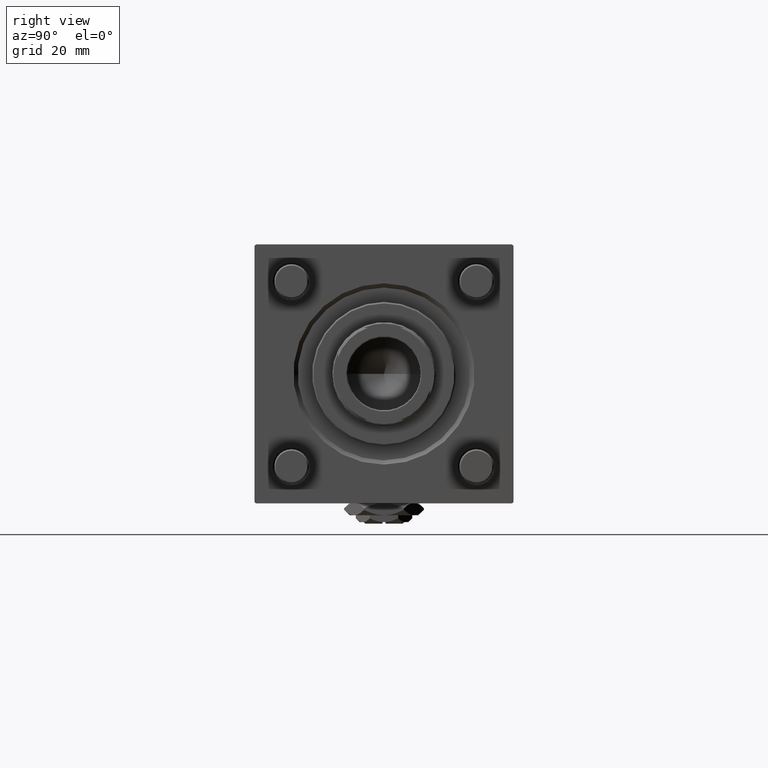
[diagram: clean part render]
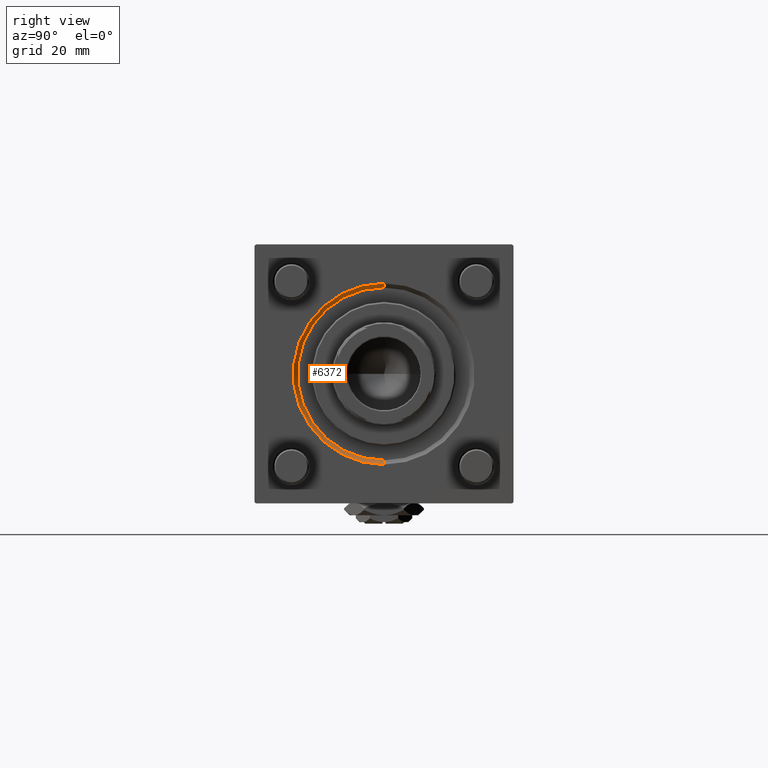
[diagram: same view with one face highlighted and labeled with its STEP entity id]
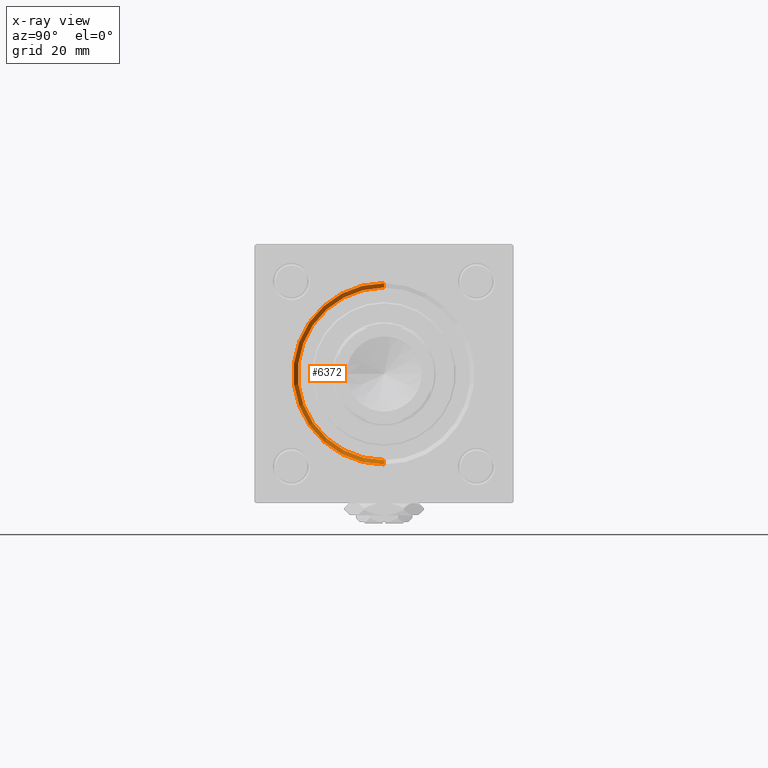
[diagram: x-ray of the same camera — body ghosted, the highlighted face saturated]
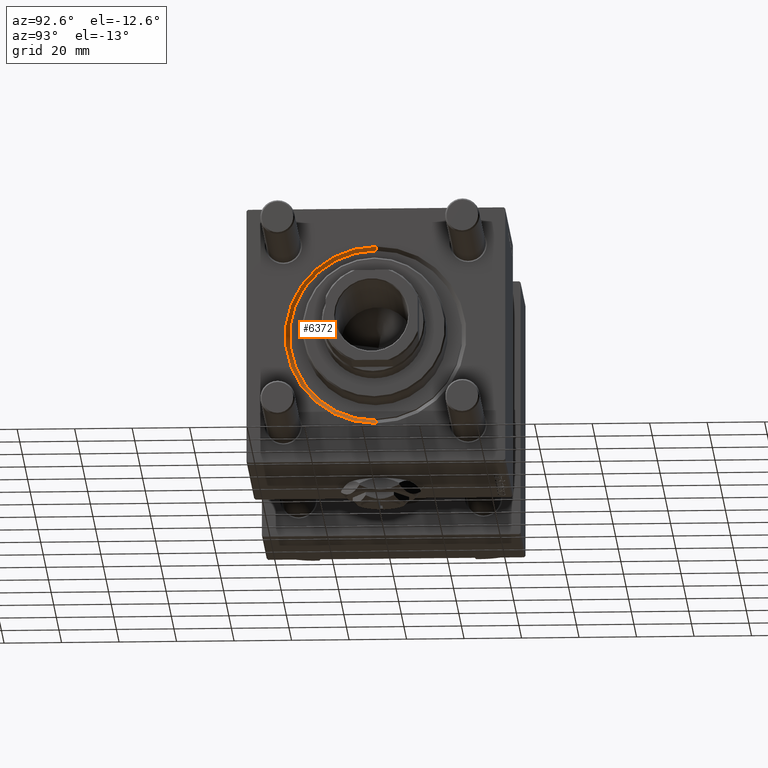
[diagram: same view with one face highlighted and labeled with its STEP entity id]
A machine part, right view. The second image highlights one B-rep face of the part: STEP entity #6372.
The next image is the same camera in x-ray: the body ghosted, the highlighted face saturated — about 0% of this face is hidden behind the body in this view.
A second angle (auxiliary view) of the same face is appended — the face is thin or edge-on in the first view.
In plain terms, the highlighted conical surface has half-angle 45 deg.
Its self-contained STEP definition (entity closure, byte-faithful):
#371 = ORIENTED_EDGE ( 'NONE', *, *, #21336, .F. ) ;
#4031 = AXIS2_PLACEMENT_3D ( 'NONE', #15682, #15971, #47008 ) ;
#4218 = AXIS2_PLACEMENT_3D ( 'NONE', #4789, #13058, #13343 ) ;
#4245 = FACE_OUTER_BOUND ( 'NONE', #16954, .T. ) ;
#4726 = VECTOR ( 'NONE', #36168, 1000.000000000000114 ) ;
#4789 = CARTESIAN_POINT ( 'NONE',  ( 155.0000000000000000, 0.000000000000000000, 0.000000000000000000 ) ) ;
#6372 = ADVANCED_FACE ( 'NONE', ( #4245 ), #36484, .F. ) ;
#11017 = AXIS2_PLACEMENT_3D ( 'NONE', #51495, #23709, #46769 ) ;
#11974 = CARTESIAN_POINT ( 'NONE',  ( 155.0000000000000000, 3.857637417314162689E-15, 31.50000000000000000 ) ) ;
#13058 = DIRECTION ( 'NONE',  ( -1.000000000000000000, -0.000000000000000000, -0.000000000000000000 ) ) ;
#13343 = DIRECTION ( 'NONE',  ( 0.000000000000000000, 0.000000000000000000, 1.000000000000000000 ) ) ;
#15433 = EDGE_CURVE ( 'NONE', #33271, #46952, #25793, .T. ) ;
#15682 = CARTESIAN_POINT ( 'NONE',  ( 153.5000000000000000, 0.000000000000000000, 0.000000000000000000 ) ) ;
#15971 = DIRECTION ( 'NONE',  ( 1.000000000000000000, 0.000000000000000000, 0.000000000000000000 ) ) ;
#16954 = EDGE_LOOP ( 'NONE', ( #49093, #40628, #56728, #371 ) ) ;
#17228 = CIRCLE ( 'NONE', #4031, 30.00000000000000000 ) ;
#18141 = CARTESIAN_POINT ( 'NONE',  ( 153.5000000000000000, 0.000000000000000000, -30.00000000000000000 ) ) ;
#21336 = EDGE_CURVE ( 'NONE', #34060, #25951, #50071, .T. ) ;
#23354 = CARTESIAN_POINT ( 'NONE',  ( 155.0000000000000000, 0.000000000000000000, -31.50000000000000000 ) ) ;
#23709 = DIRECTION ( 'NONE',  ( 1.000000000000000000, 0.000000000000000000, 0.000000000000000000 ) ) ;
#25793 = LINE ( 'NONE', #48556, #30155 ) ;
#25951 = VERTEX_POINT ( 'NONE', #23354 ) ;
#30155 = VECTOR ( 'NONE', #48263, 1000.000000000000114 ) ;
#33271 = VERTEX_POINT ( 'NONE', #46218 ) ;
#34060 = VERTEX_POINT ( 'NONE', #53991 ) ;
#34390 = EDGE_CURVE ( 'NONE', #25951, #46952, #51433, .T. ) ;
#36168 = DIRECTION ( 'NONE',  ( 0.7071067811865474617, 0.000000000000000000, -0.7071067811865474617 ) ) ;
#36484 = CONICAL_SURFACE ( 'NONE', #11017, 30.00000000000000000, 0.7853981633974482790 ) ;
#40628 = ORIENTED_EDGE ( 'NONE', *, *, #15433, .T. ) ;
#46218 = CARTESIAN_POINT ( 'NONE',  ( 153.5000000000000000, 3.673940397442059178E-15, 30.00000000000000000 ) ) ;
#46769 = DIRECTION ( 'NONE',  ( 0.000000000000000000, 0.000000000000000000, -1.000000000000000000 ) ) ;
#46952 = VERTEX_POINT ( 'NONE', #11974 ) ;
#47008 = DIRECTION ( 'NONE',  ( 0.000000000000000000, 0.000000000000000000, 1.000000000000000000 ) ) ;
#48263 = DIRECTION ( 'NONE',  ( 0.7071067811865474617, 8.659560562354932858E-17, 0.7071067811865474617 ) ) ;
#48556 = CARTESIAN_POINT ( 'NONE',  ( 153.5000000000000000, 3.673940397442059178E-15, 30.00000000000000000 ) ) ;
#49093 = ORIENTED_EDGE ( 'NONE', *, *, #53104, .F. ) ;
#50071 = LINE ( 'NONE', #18141, #4726 ) ;
#51433 = CIRCLE ( 'NONE', #4218, 31.50000000000000000 ) ;
#51495 = CARTESIAN_POINT ( 'NONE',  ( 153.5000000000000000, 0.000000000000000000, 0.000000000000000000 ) ) ;
#53104 = EDGE_CURVE ( 'NONE', #33271, #34060, #17228, .T. ) ;
#53991 = CARTESIAN_POINT ( 'NONE',  ( 153.5000000000000000, 0.000000000000000000, -30.00000000000000000 ) ) ;
#56728 = ORIENTED_EDGE ( 'NONE', *, *, #34390, .F. ) ;